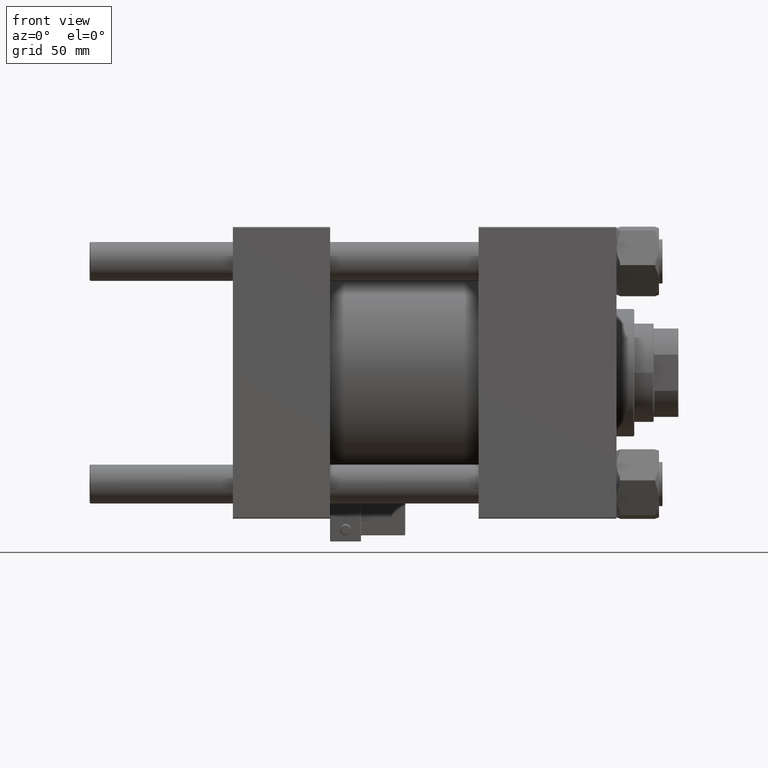
[diagram: clean part render]
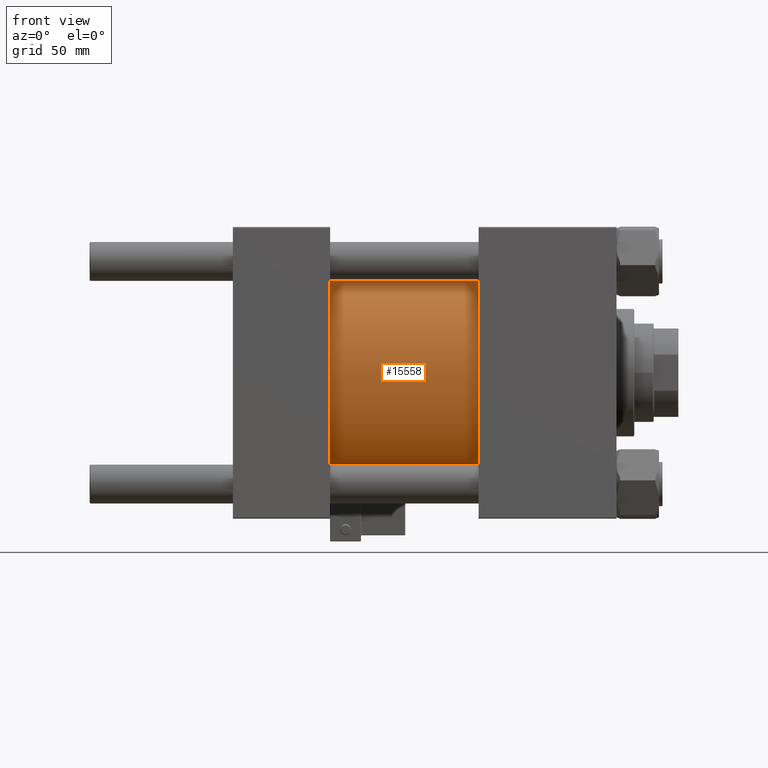
[diagram: same view with one face highlighted and labeled with its STEP entity id]
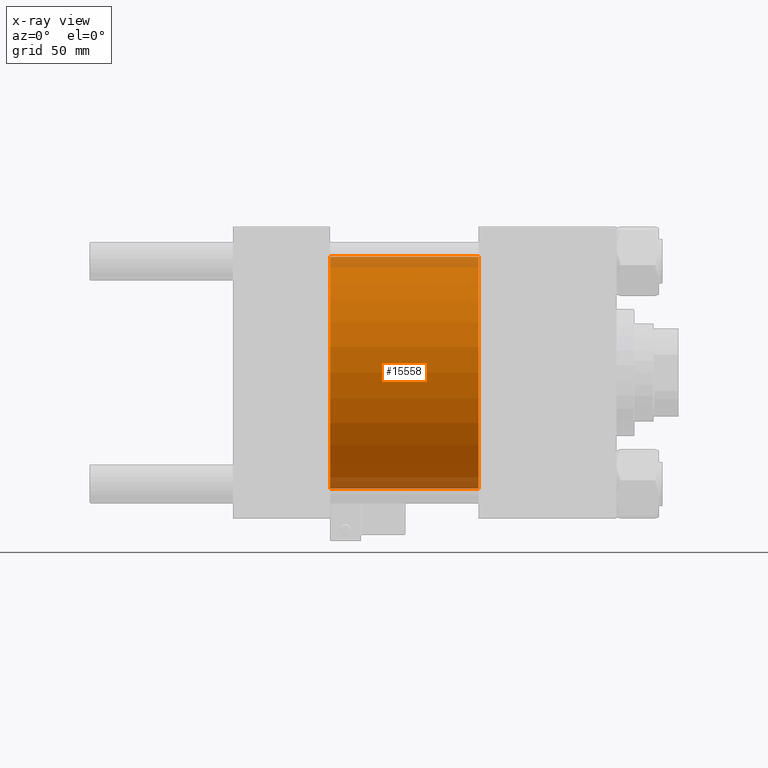
[diagram: x-ray of the same camera — body ghosted, the highlighted face saturated]
A machine part, front view. The second image highlights one B-rep face of the part: STEP entity #15558.
The next image is the same camera in x-ray: the body ghosted, the highlighted face saturated — about 9% of this face is hidden behind the body in this view.
In plain terms, the highlighted cylindrical surface (partial cylindrical patch) has radius 65.5 mm, axis along (-1, -0, -0).
Its self-contained STEP definition (entity closure, byte-faithful):
#100 = CARTESIAN_POINT ( 'NONE',  ( 54.99999999999999289, 8.021436534415164826E-15, -65.50000000000001421 ) ) ;
#239 = AXIS2_PLACEMENT_3D ( 'NONE', #5758, #49918, #29726 ) ;
#1616 = ORIENTED_EDGE ( 'NONE', *, *, #48259, .T. ) ;
#2527 = VECTOR ( 'NONE', #10536, 1000.000000000000000 ) ;
#5055 = DIRECTION ( 'NONE',  ( 0.000000000000000000, 0.000000000000000000, -1.000000000000000000 ) ) ;
#5504 = FACE_OUTER_BOUND ( 'NONE', #12905, .T. ) ;
#5758 = CARTESIAN_POINT ( 'NONE',  ( 139.0000000000000000, 0.000000000000000000, 0.000000000000000000 ) ) ;
#7459 = VERTEX_POINT ( 'NONE', #100 ) ;
#9229 = CIRCLE ( 'NONE', #48311, 65.50000000000001421 ) ;
#9675 = ORIENTED_EDGE ( 'NONE', *, *, #44441, .F. ) ;
#10536 = DIRECTION ( 'NONE',  ( -1.000000000000000000, -0.000000000000000000, -0.000000000000000000 ) ) ;
#10607 = CARTESIAN_POINT ( 'NONE',  ( 54.99999999999999289, 0.000000000000000000, 65.50000000000001421 ) ) ;
#11483 = VERTEX_POINT ( 'NONE', #50172 ) ;
#12719 = CIRCLE ( 'NONE', #49266, 65.50000000000001421 ) ;
#12905 = EDGE_LOOP ( 'NONE', ( #48513, #9675, #47469, #1616 ) ) ;
#13061 = CARTESIAN_POINT ( 'NONE',  ( 139.0000000000000000, 8.021436534415164826E-15, -65.50000000000001421 ) ) ;
#14796 = DIRECTION ( 'NONE',  ( -1.000000000000000000, -0.000000000000000000, -0.000000000000000000 ) ) ;
#15144 = VECTOR ( 'NONE', #14796, 1000.000000000000000 ) ;
#15558 = ADVANCED_FACE ( 'NONE', ( #5504 ), #17742, .T. ) ;
#17742 = CYLINDRICAL_SURFACE ( 'NONE', #239, 65.50000000000001421 ) ;
#18805 = CARTESIAN_POINT ( 'NONE',  ( 139.0000000000000000, 0.000000000000000000, 65.50000000000001421 ) ) ;
#19421 = CARTESIAN_POINT ( 'NONE',  ( 54.99999999999999289, 0.000000000000000000, 0.000000000000000000 ) ) ;
#22810 = CARTESIAN_POINT ( 'NONE',  ( 139.0000000000000000, 8.021436534415164826E-15, -65.50000000000001421 ) ) ;
#23687 = DIRECTION ( 'NONE',  ( 0.000000000000000000, 0.000000000000000000, 1.000000000000000000 ) ) ;
#26804 = LINE ( 'NONE', #22810, #15144 ) ;
#29726 = DIRECTION ( 'NONE',  ( 0.000000000000000000, 0.000000000000000000, 1.000000000000000000 ) ) ;
#29814 = DIRECTION ( 'NONE',  ( 1.000000000000000000, 0.000000000000000000, 0.000000000000000000 ) ) ;
#30076 = CARTESIAN_POINT ( 'NONE',  ( 139.0000000000000000, 0.000000000000000000, 0.000000000000000000 ) ) ;
#31301 = LINE ( 'NONE', #18805, #2527 ) ;
#33849 = EDGE_CURVE ( 'NONE', #11483, #34395, #31301, .T. ) ;
#34395 = VERTEX_POINT ( 'NONE', #10607 ) ;
#39463 = EDGE_CURVE ( 'NONE', #51335, #7459, #26804, .T. ) ;
#43879 = DIRECTION ( 'NONE',  ( 1.000000000000000000, -0.000000000000000000, -0.000000000000000000 ) ) ;
#44441 = EDGE_CURVE ( 'NONE', #11483, #51335, #9229, .T. ) ;
#47469 = ORIENTED_EDGE ( 'NONE', *, *, #33849, .T. ) ;
#48259 = EDGE_CURVE ( 'NONE', #34395, #7459, #12719, .T. ) ;
#48311 = AXIS2_PLACEMENT_3D ( 'NONE', #30076, #29814, #5055 ) ;
#48513 = ORIENTED_EDGE ( 'NONE', *, *, #39463, .F. ) ;
#49266 = AXIS2_PLACEMENT_3D ( 'NONE', #19421, #43879, #23687 ) ;
#49918 = DIRECTION ( 'NONE',  ( -1.000000000000000000, -0.000000000000000000, -0.000000000000000000 ) ) ;
#50172 = CARTESIAN_POINT ( 'NONE',  ( 139.0000000000000000, 0.000000000000000000, 65.50000000000001421 ) ) ;
#51335 = VERTEX_POINT ( 'NONE', #13061 ) ;